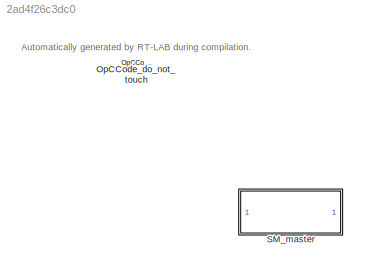
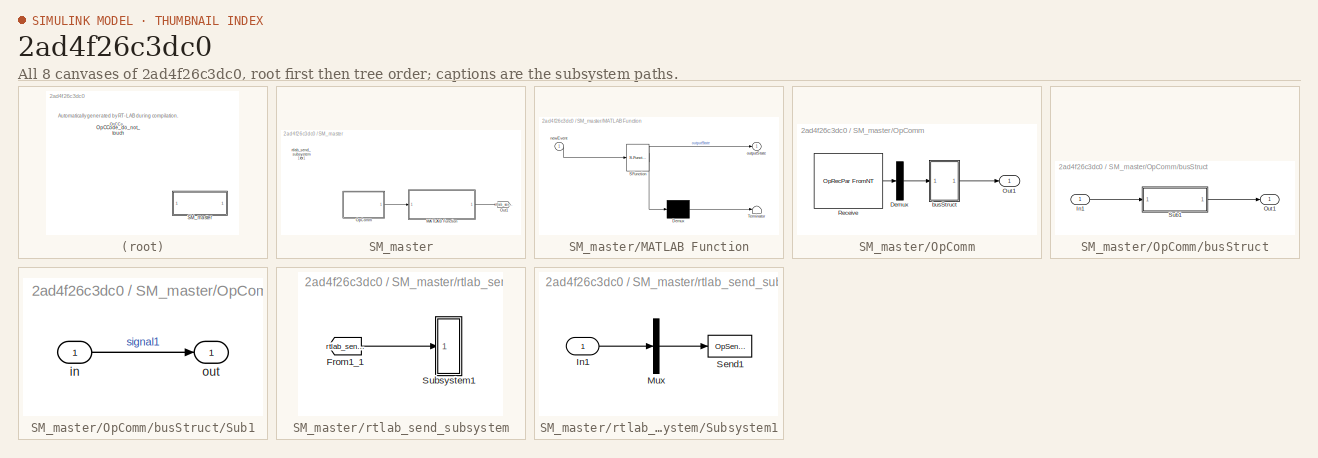
[diagram: thumbnail index - all 8 canvases of the model, root first then tree order]
MODEL slx_2ad4f26c3dc0
KIND model
CONFIG AbsTol = auto
CONFIG EnableMultiTasking = on
CONFIG FixedStep = 0.001
CONFIG MaxStep = auto
CONFIG MinStep = auto
CONFIG RelTol = 1e-3
CONFIG SampleTimeConstraint = Unconstrained
CONFIG SolverName = ode4
CONFIG StartTime = 0.0
CONFIG StopTime = inf
WORKSPACE source: MATLAB code (in-file)
WORKSPACE code: addpath src\model
WORKSPACE code: addpath src\utils
WORKSPACE utils = StateMachineUtils
WORKSPACE utils = utils.loadEventsInAds('resources/tct/ALLEVENT.ADS')
WORKSPACE utils = utils.loadDisabledEventsInPdt('resources/tct/supervisor1/DATA_SIMSUP1_MG1.PDT')
WORKSPACE utils = utils.loadTransitionsInAds('resources/tct/supervisor1/SIMSUP1_MG1.ADS')
WORKSPACE encodedStates = StateEncoder.encode(utils.statesArray)
WORKSPACE transitions = utils.transitions
WORKSPACE allEvents = utils.eventsArray
BLOCK [Reference] OpCCode_do_not_touch  REF=opal_lib/Communication/OpCCode
  Ports = []
  SourceBlock = opal_lib/Communication/OpCCode
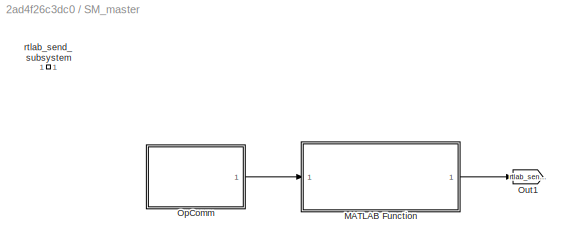
BLOCK [SubSystem] SM_master
  Ports = []
  RequestExecContextInheritance = off
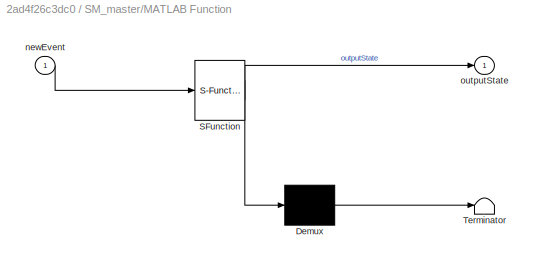
BLOCK [SubSystem] SM_master/MATLAB Function
  ErrorFcn = Stateflow.Translate.translate
  PermitHierarchicalResolution = ExplicitOnly
  Ports = [1, 1]
  RequestExecContextInheritance = off
  SFBlockType = MATLAB Function
  TreatAsAtomicUnit = on
BLOCK [Demux] SM_master/MATLAB Function/ Demux 
  Outputs = 1
  Ports = [1, 1]
BLOCK [S-Function] SM_master/MATLAB Function/ SFunction 
  EnableBusSupport = on
  FunctionName = sf_sfun
  Parameters = allEvents,encodedStates,transitions
  PortCounts = [1 2]
  Ports = [1, 2]
  SFcnIsStateOwnerBlock = off
  SFunctionDeploymentMode = off
  Tag = Stateflow S-Function 2
BLOCK [Terminator] SM_master/MATLAB Function/ Terminator 
BLOCK [Inport] SM_master/MATLAB Function/newEvent
BLOCK [Outport] SM_master/MATLAB Function/outputState
BLOCK [SubSystem] SM_master/OpComm
  Ports = [0, 1]
  RequestExecContextInheritance = off
BLOCK [Demux] SM_master/OpComm/Demux
  Outputs = [1]
  Ports = [1, 1]
BLOCK [Outport] SM_master/OpComm/Out1
BLOCK [Reference] SM_master/OpComm/Receive  REF=opal_lib/Communication/OpRecPar
FromNT
  Ports = [0, 1]
  SourceBlock = opal_lib/Communication/OpRecPar\nFromNT
  SourceType = OPAL Receive Icon
BLOCK [SubSystem] SM_master/OpComm/busStruct
  Ports = [1, 1]
  RequestExecContextInheritance = off
BLOCK [Inport] SM_master/OpComm/busStruct/In1
BLOCK [Outport] SM_master/OpComm/busStruct/Out1
BLOCK [SubSystem] SM_master/OpComm/busStruct/Sub1
  Ports = [1, 1]
  RequestExecContextInheritance = off
BLOCK [Inport] SM_master/OpComm/busStruct/Sub1/in
BLOCK [Outport] SM_master/OpComm/busStruct/Sub1/out
BLOCK [Goto] SM_master/Out1
  GotoTag = rtlab_send_1
  TagVisibility = global
BLOCK [SubSystem] SM_master/rtlab_send_subsystem
  Ports = []
  Priority = -100
  RequestExecContextInheritance = off
BLOCK [From] SM_master/rtlab_send_subsystem/From1_1
  GotoTag = rtlab_send_1
  TagVisibility = global
BLOCK [SubSystem] SM_master/rtlab_send_subsystem/Subsystem1
  Ports = [1]
  RequestExecContextInheritance = off
BLOCK [Inport] SM_master/rtlab_send_subsystem/Subsystem1/In1
BLOCK [Mux] SM_master/rtlab_send_subsystem/Subsystem1/Mux
  Inputs = 1
  Ports = [1, 1]
BLOCK [Reference] SM_master/rtlab_send_subsystem/Subsystem1/Send1  REF=opal_lib/Communication/OpSendToNT
  Ports = [1]
  SourceBlock = opal_lib/Communication/OpSendToNT
  SourceType = OPAL Send Icon
ANNOTATION (root): Automatically generated by RT-LAB during compilation.
LINE SM_master/MATLAB Function:1 -> SM_master/Out1:1
LINE SM_master/OpComm/Demux:1 -> SM_master/OpComm/busStruct:1
LINE SM_master/OpComm/Receive:1 -> SM_master/OpComm/Demux:1
LINE SM_master/OpComm/busStruct/In1:1 -> SM_master/OpComm/busStruct/Sub1:1
LINE SM_master/OpComm/busStruct/Sub1/in:1 -> SM_master/OpComm/busStruct/Sub1/out:1
LINE SM_master/OpComm/busStruct/Sub1:1 -> SM_master/OpComm/busStruct/Out1:1
LINE SM_master/OpComm/busStruct:1 -> SM_master/OpComm/Out1:1
LINE SM_master/OpComm:1 -> SM_master/MATLAB Function:1
LINE SM_master/rtlab_send_subsystem/From1_1:1 -> SM_master/rtlab_send_subsystem/Subsystem1:1
LINE SM_master/rtlab_send_subsystem/Subsystem1/In1:1 -> SM_master/rtlab_send_subsystem/Subsystem1/Mux:1
LINE SM_master/rtlab_send_subsystem/Subsystem1/Mux:1 -> SM_master/rtlab_send_subsystem/Subsystem1/Send1:1
CHART SM_master/MATLAB Function states=1 transitions=1
  STATE_LABEL 'eML_blk_kernel()'
  STATE_LABEL 'SCRIPT:\nfunction outputState  = stateMachine(newEvent, allEvents, transitions, encodedStates)\n% State Machine with parameters from files.\n\n% Initialize a persistent object. Its value will not be erased as this\n% block finishes.\npersistent stateMachine\n\n% Assign the persistent object to the StateMachine class with data passed\n% as parameters.\nif (isempty(stateMachine))\n    statesArray = StateEncode...<+317ch>'
CHART  states=0 transitions=0
